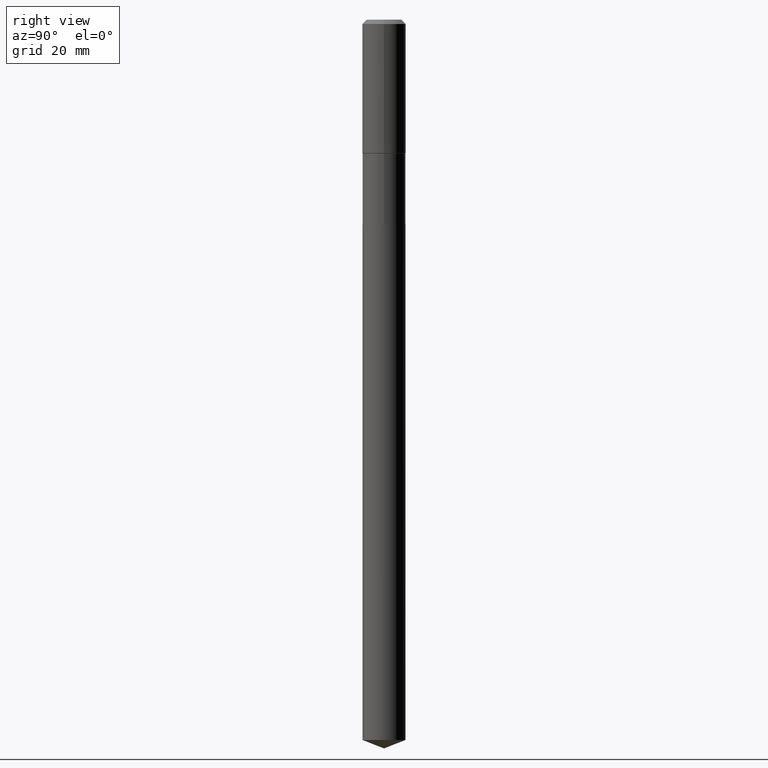
[diagram: clean part render]
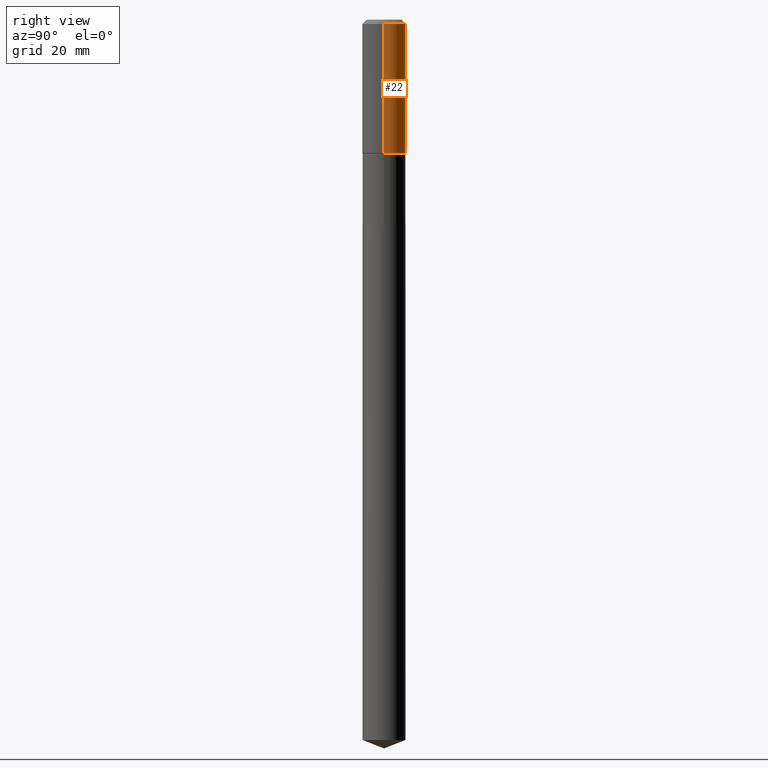
[diagram: same view with one face highlighted and labeled with its STEP entity id]
A machine part, right view. The second image highlights one B-rep face of the part: STEP entity #22.
In plain terms, the highlighted cylindrical surface (edge-blend (fillet) strip) has radius 7.0002 mm, axis along (-0, 0, 1).
Its self-contained STEP definition (entity closure, byte-faithful):
#1 = DIRECTION ( 'NONE',  ( -2.445468806185136877E-29, 3.491481338843145188E-15, 1.000000000000000000 ) ) ;
#2 = VERTEX_POINT ( 'NONE', #15 ) ;
#12 = ORIENTED_EDGE ( 'NONE', *, *, #238, .T. ) ;
#15 = CARTESIAN_POINT ( 'NONE',  ( 0.2756000000000002337, -7.813062365996238595E-15, -1.686549999999998439 ) ) ;
#22 = ADVANCED_FACE ( 'NONE', ( #244 ), #122, .T. ) ;
#44 = VERTEX_POINT ( 'NONE', #110 ) ;
#49 = CIRCLE ( 'NONE', #234, 0.2756000000000000116 ) ;
#51 = DIRECTION ( 'NONE',  ( -2.445468806185136597E-29, 3.491481338843145583E-15, 1.000000000000000000 ) ) ;
#55 = CARTESIAN_POINT ( 'NONE',  ( -0.2756000000000000116, -1.082248371956631703E-15, -0.05512000000000038397 ) ) ;
#56 = VECTOR ( 'NONE', #164, 39.37007874015748143 ) ;
#104 = EDGE_CURVE ( 'NONE', #2, #476, #402, .T. ) ;
#110 = CARTESIAN_POINT ( 'NONE',  ( -0.2756000000000002337, -3.930302072271064685E-15, -1.686549999999998439 ) ) ;
#122 = CYLINDRICAL_SURFACE ( 'NONE', #351, 0.2756000000000001227 ) ;
#164 = DIRECTION ( 'NONE',  ( -2.445468806185136877E-29, 3.491481338843145188E-15, 1.000000000000000000 ) ) ;
#187 = CARTESIAN_POINT ( 'NONE',  ( -0.2756000000000001227, 1.958255779754836984E-15, -1.355658510874252567E-29 ) ) ;
#190 = EDGE_CURVE ( 'NONE', #44, #316, #461, .T. ) ;
#203 = ORIENTED_EDGE ( 'NONE', *, *, #213, .F. ) ;
#213 = EDGE_CURVE ( 'NONE', #476, #316, #49, .T. ) ;
#222 = CARTESIAN_POINT ( 'NONE',  ( 0.2756000000000001227, -1.924504513970336137E-15, 1.343874319409360548E-29 ) ) ;
#230 = ORIENTED_EDGE ( 'NONE', *, *, #104, .F. ) ;
#234 = AXIS2_PLACEMENT_3D ( 'NONE', #306, #51, #240 ) ;
#238 = EDGE_CURVE ( 'NONE', #2, #44, #420, .T. ) ;
#240 = DIRECTION ( 'NONE',  ( 1.000000000000000000, -6.982962677686267499E-15, 0.000000000000000000 ) ) ;
#244 = FACE_OUTER_BOUND ( 'NONE', #460, .T. ) ;
#275 = CARTESIAN_POINT ( 'NONE',  ( 4.124405415071538433E-29, -5.888557852025902063E-15, -1.686549999999998439 ) ) ;
#279 = DIRECTION ( 'NONE',  ( -2.445468806185136597E-29, 3.491481338843145583E-15, 1.000000000000000000 ) ) ;
#306 = CARTESIAN_POINT ( 'NONE',  ( 1.347942405969256589E-30, -1.924504513970355070E-16, -0.05512000000000038397 ) ) ;
#316 = VERTEX_POINT ( 'NONE', #55 ) ;
#321 = CARTESIAN_POINT ( 'NONE',  ( 0.000000000000000000, 0.000000000000000000, 0.000000000000000000 ) ) ;
#351 = AXIS2_PLACEMENT_3D ( 'NONE', #321, #279, #434 ) ;
#356 = DIRECTION ( 'NONE',  ( 1.000000000000000000, -6.982962677686267499E-15, 0.000000000000000000 ) ) ;
#402 = LINE ( 'NONE', #222, #56 ) ;
#411 = VECTOR ( 'NONE', #1, 39.37007874015748143 ) ;
#412 = CARTESIAN_POINT ( 'NONE',  ( 0.2756000000000000116, -2.116954965367371053E-15, -0.05512000000000038397 ) ) ;
#420 = CIRCLE ( 'NONE', #452, 0.2756000000000002337 ) ;
#434 = DIRECTION ( 'NONE',  ( 1.000000000000000000, -6.982962677686267499E-15, 4.876176775795935793E-29 ) ) ;
#452 = AXIS2_PLACEMENT_3D ( 'NONE', #275, #466, #356 ) ;
#460 = EDGE_LOOP ( 'NONE', ( #12, #470, #203, #230 ) ) ;
#461 = LINE ( 'NONE', #187, #411 ) ;
#466 = DIRECTION ( 'NONE',  ( -2.445468806185136597E-29, 3.491481338843145583E-15, 1.000000000000000000 ) ) ;
#470 = ORIENTED_EDGE ( 'NONE', *, *, #190, .T. ) ;
#476 = VERTEX_POINT ( 'NONE', #412 ) ;